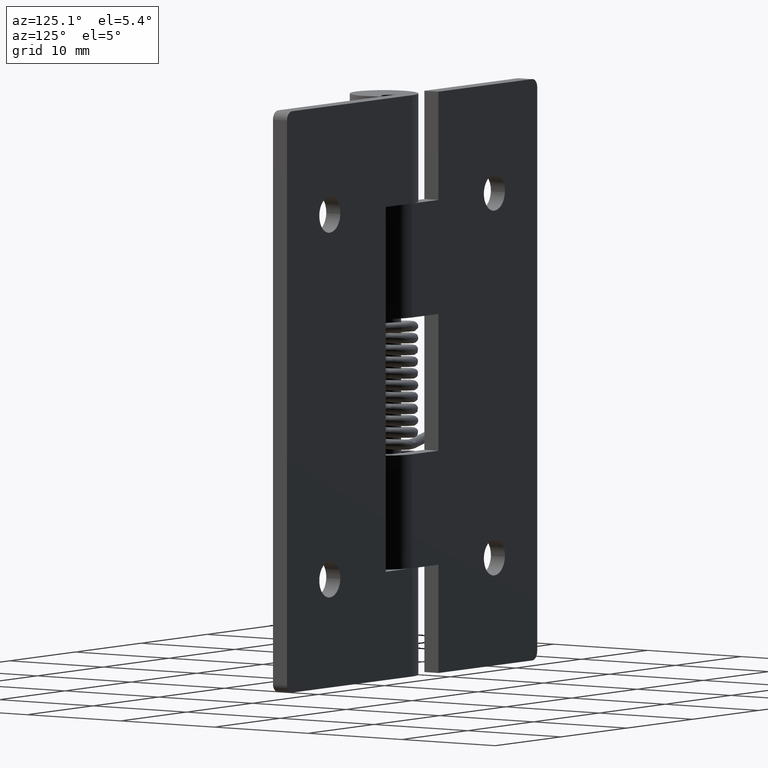
[diagram: clean part render]
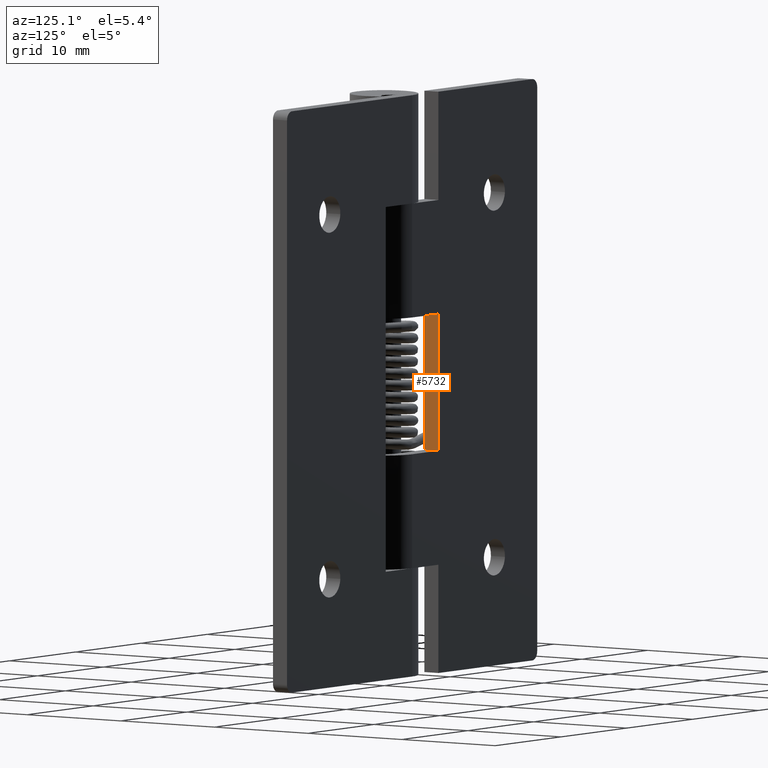
[diagram: same view with one face highlighted and labeled with its STEP entity id]
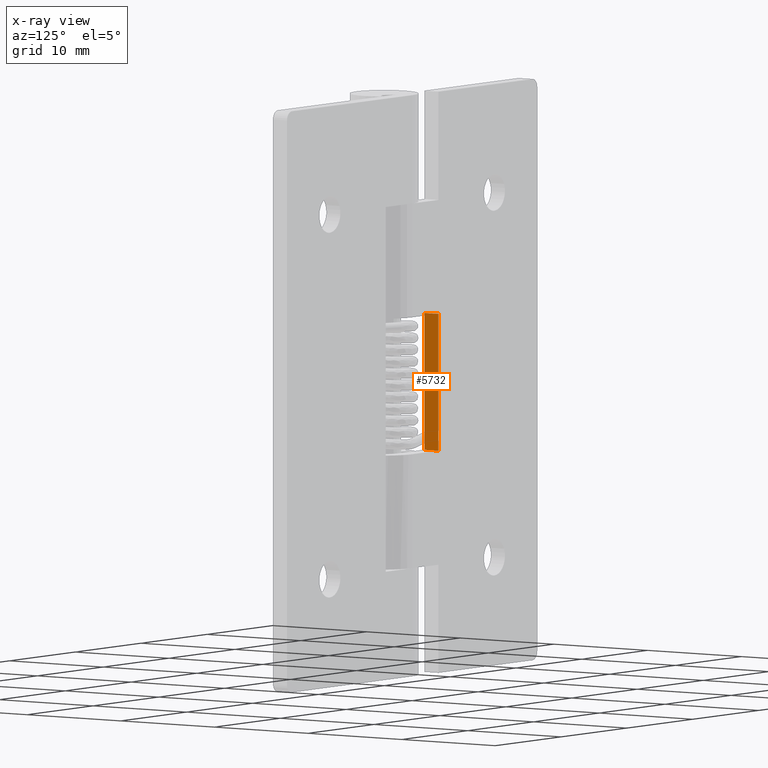
[diagram: x-ray of the same camera — body ghosted, the highlighted face saturated]
A machine part, auxiliary view. The second image highlights one B-rep face of the part: STEP entity #5732.
The next image is the same camera in x-ray: the body ghosted, the highlighted face saturated — about 0% of this face is hidden behind the body in this view.
In plain terms, the highlighted face is a freeform B-spline surface patch.
Its self-contained STEP definition (entity closure, byte-faithful):
#5697=CARTESIAN_POINT('',(-4.0,1.425075002907234,32.099399976741672));
#5698=CARTESIAN_POINT('',(-4.0,1.425075002907234,18.900599701393251));
#5699=CARTESIAN_POINT('',(-4.0,3.074925037325847,32.099399976741672));
#5700=CARTESIAN_POINT('',(-4.0,3.074925037325847,18.900599701393240));
#5701=B_SPLINE_SURFACE_WITH_KNOTS('',1,1,((#5697,#5699),(#5698,#5700)),.UNSPECIFIED.,.F.,.F.,.U.,(2,2),(2,2),(0.0,13.198800275348431),(0.041708334948495,0.958291687403247),.UNSPECIFIED.);
#5702=CARTESIAN_POINT('',(-4.0,1.500000000000000,31.500000000000000));
#5703=VERTEX_POINT('',#5702);
#5704=CARTESIAN_POINT('',(-4.0,1.499999999999946,19.500000000000000));
#5705=VERTEX_POINT('',#5704);
#5706=CARTESIAN_POINT('',(-4.0,1.500000000000000,31.500000000000000));
#5707=CARTESIAN_POINT('',(-4.0,1.499999999999946,19.500000000000000));
#5708=QUASI_UNIFORM_CURVE('',1,(#5706,#5707),.UNSPECIFIED.,.F.,.U.);
#5709=EDGE_CURVE('',#5703,#5705,#5708,.T.);
#5710=ORIENTED_EDGE('',*,*,#5709,.T.);
#5711=CARTESIAN_POINT('',(-4.0,3.0,19.500000000000000));
#5712=VERTEX_POINT('',#5711);
#5713=CARTESIAN_POINT('',(-4.0,3.0,19.500000000000000));
#5714=CARTESIAN_POINT('',(-4.0,1.499999999999946,19.500000000000000));
#5715=QUASI_UNIFORM_CURVE('',1,(#5713,#5714),.UNSPECIFIED.,.F.,.U.);
#5716=EDGE_CURVE('',#5712,#5705,#5715,.T.);
#5717=ORIENTED_EDGE('',*,*,#5716,.F.);
#5718=CARTESIAN_POINT('',(-4.0,3.0,31.500000000000000));
#5719=VERTEX_POINT('',#5718);
#5720=CARTESIAN_POINT('',(-4.0,3.0,19.500000000000000));
#5721=CARTESIAN_POINT('',(-4.0,3.0,31.500000000000000));
#5722=QUASI_UNIFORM_CURVE('',1,(#5720,#5721),.UNSPECIFIED.,.F.,.U.);
#5723=EDGE_CURVE('',#5712,#5719,#5722,.T.);
#5724=ORIENTED_EDGE('',*,*,#5723,.T.);
#5725=CARTESIAN_POINT('',(-4.0,3.0,31.500000000000000));
#5726=CARTESIAN_POINT('',(-4.0,1.500000000000000,31.500000000000000));
#5727=QUASI_UNIFORM_CURVE('',1,(#5725,#5726),.UNSPECIFIED.,.F.,.U.);
#5728=EDGE_CURVE('',#5719,#5703,#5727,.T.);
#5729=ORIENTED_EDGE('',*,*,#5728,.T.);
#5730=EDGE_LOOP('',(#5710,#5717,#5724,#5729));
#5731=FACE_OUTER_BOUND('',#5730,.T.);
#5732=ADVANCED_FACE('',(#5731),#5701,.T.);